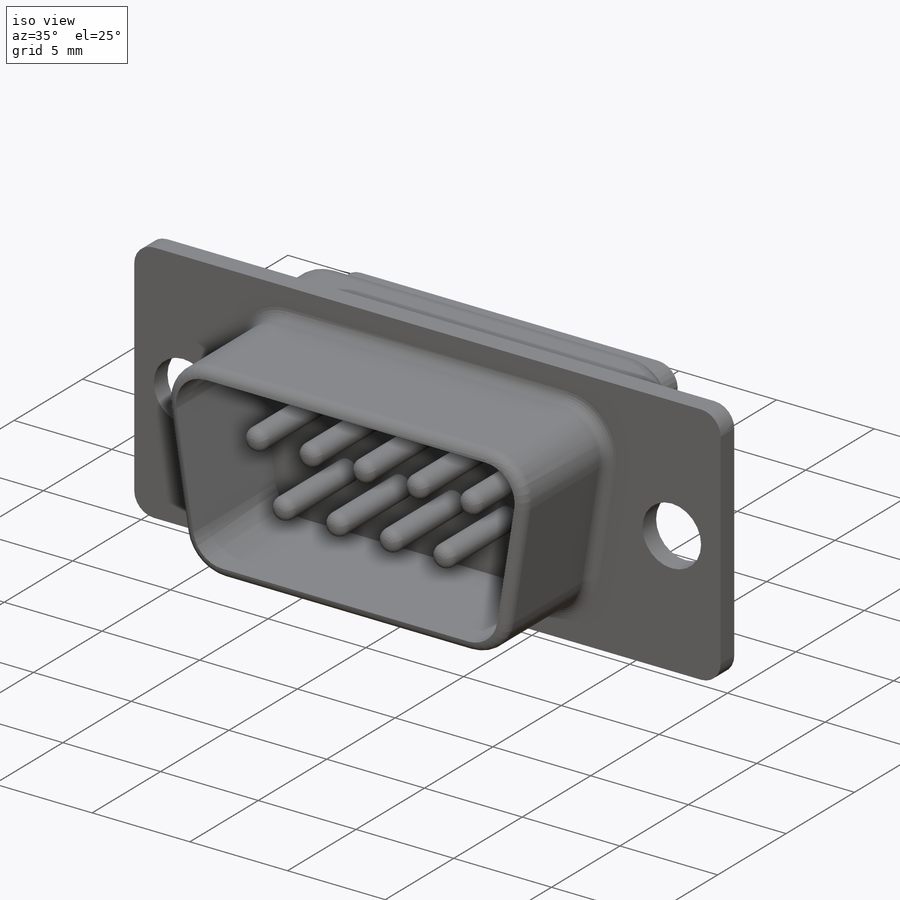
[diagram: iso view]
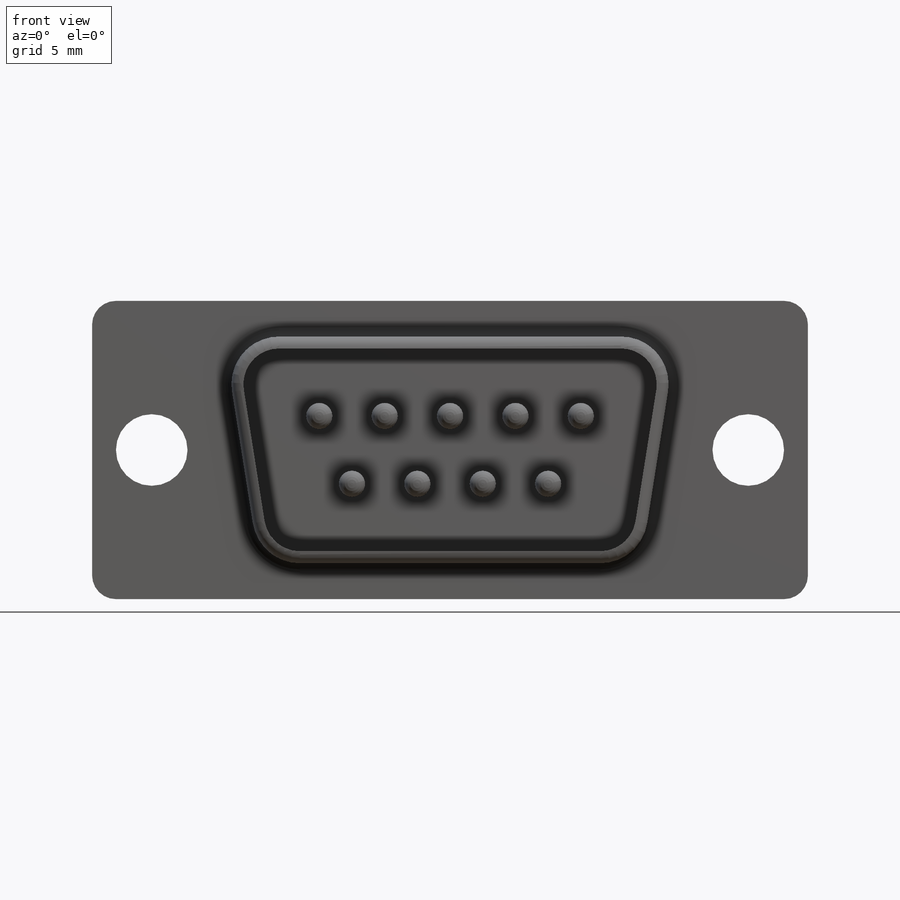
[diagram: front view]
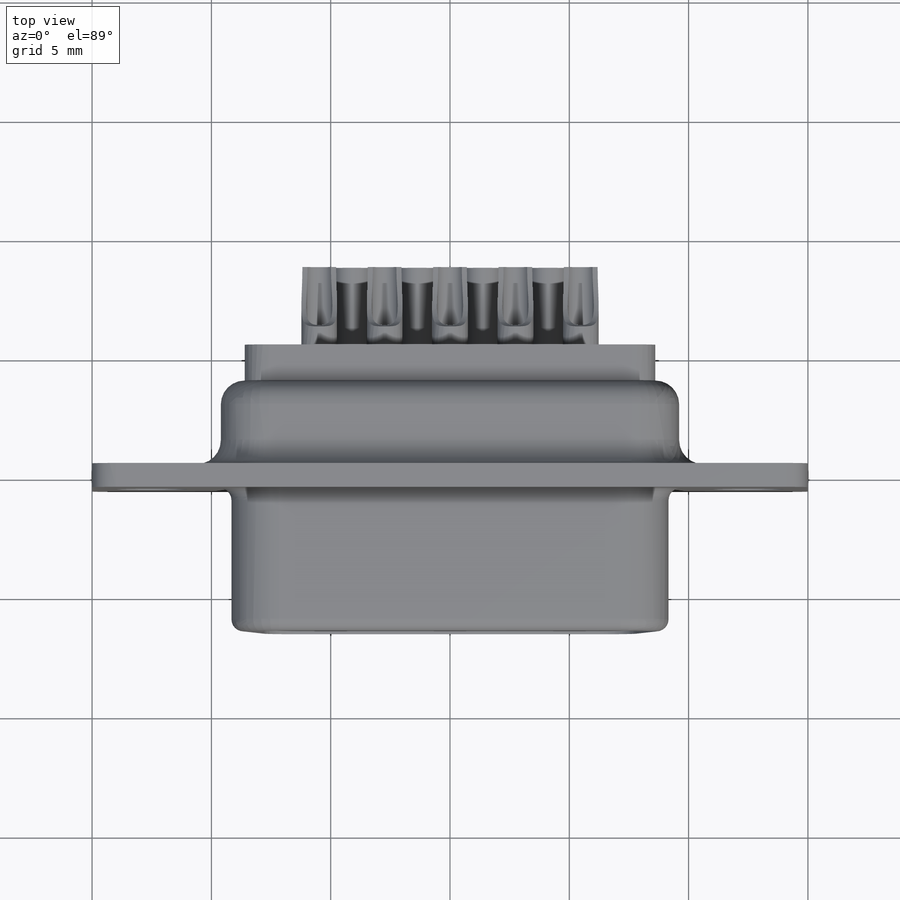
[diagram: top view]
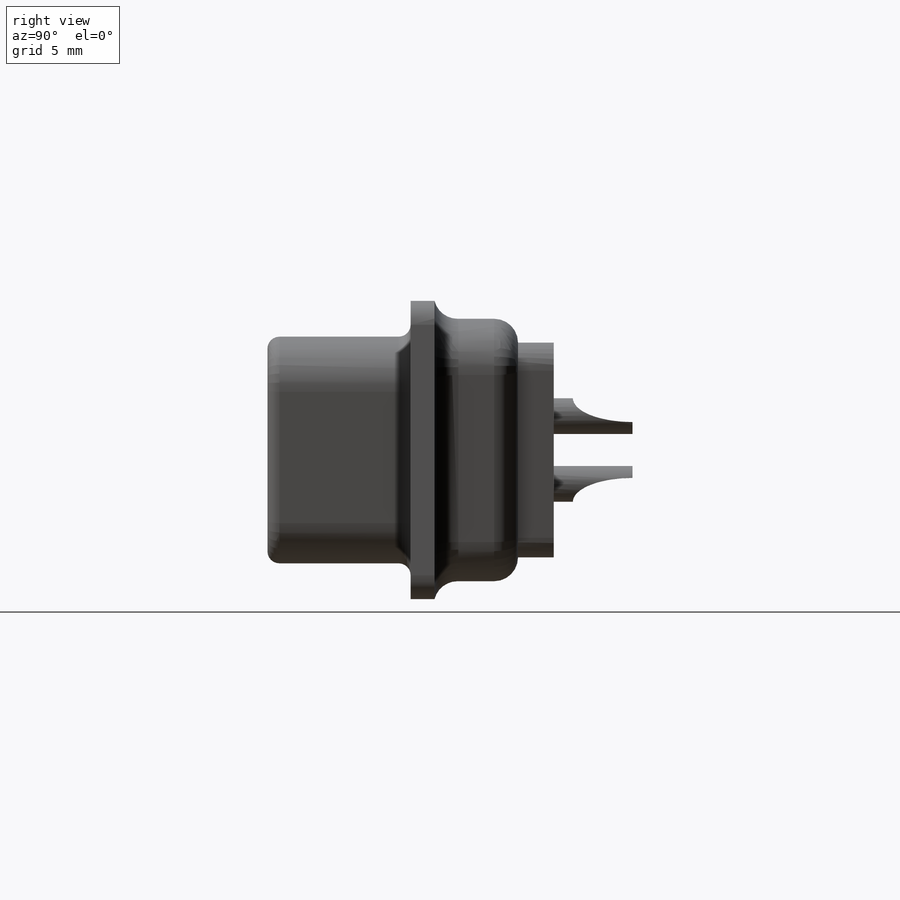
[diagram: right view]
SOLIDWORKS PART (.sldprt)
format: sldprt  version: not decoded by parser v0  size: 669,184 bytes
history: native  units: mm
features: sketch x10, extrude x7, plane x3, cut_extrude x3, fillet x3, pattern_linear x2, material x1 (+9 scaffold rows collapsed)
feature tree (38):
  scaffold x9  (default folders/planes/origin — collapsed)
  material  "Материал <не указан>"
  plane  "Спереди"
  plane  "Сверху"
  plane  "Справа"
  sketch  "Эскиз1"  dims[c1.D1=~55.075881mm c1.D2=~97.397347mm c2.D1=30.0mm c2.D2=12.5mm]
  extrude  "Бобышка-Вытянуть1"  Depth=1mm
  sketch  "Эскиз2"  dims[c1.D4=2.0mm c1.D1=~9.576658mm c1.D2=~15.781941mm c2.D1=11.0mm c2.D2=20.0mm c2.D3=16.0mm c3.D1=11.0mm]
  extrude  "Бобышка-Вытянуть2"  Depth=3.5mm
  sketch  "Эскиз3"  dims[D1=0.0mm D2=1.0mm]
  extrude  "Бобышка-Вытянуть3"  Depth=1.5mm
  sketch  "Эскиз4"  dims[c1.D1=1.5mm c1.D2=~0.967389mm c1.D4=0.9mm c2.D2=0.2mm c2.D3=1.42mm c2.D4=5.48mm]
  extrude  "Бобышка-Вытянуть4"  Depth=3.3mm
  sketch  "Эскиз5"  dims[D1=2.5mm D2=1.0mm]
  cut_extrude  "Вырез-Вытянуть1"  [1 undecoded]
  pattern_linear  "Линейный массив1"  Count1=5 Count2=1 Spacing1=2.74mm Spacing2=10mm
  sketch  "Эскиз6"  dims[c1.D1=~1.153149mm c1.D2=1.1mm c2.D1=1.42mm c2.D2=4.11mm]
  extrude  "Бобышка-Вытянуть5"  Depth=3.3mm
  sketch  "Эскиз7"  dims[D1=1.0mm]
  cut_extrude  "Вырез-Вытянуть2"  [1 undecoded]
  pattern_linear  "Линейный массив2"  Count1=4 Count2=1 Spacing1=2.74mm Spacing2=10mm
  sketch  "Эскиз8"  dims[D2=3.0mm D1=25.0mm]
  cut_extrude  "Вырез-Вытянуть3"  [1 undecoded]
  fillet  "Скругление1"  Radius=1mm
  fillet  "Скругление2"  Radius=1mm
  sketch  "Эскиз9"  dims[c1.D4=2.0mm c1.D1=~8.325829mm c1.D2=~13.426865mm c2.D1=19.0mm c2.D2=16.0mm c2.D3=9.5mm c2.D5=0.5mm]
  extrude  "Бобышка-Вытянуть6"  Depth=6mm
  sketch  "Эскиз10"  dims[D1=~2.182313mm]
  extrude  "Бобышка-Вытянуть7"  Depth=5mm
  fillet  "Скругление3"  Radius=0.5mm
decode coverage: 22 of 25 modeling features carry decoded parameters
note: ~ marks probable driven/reference dimensions
note: 3 parameter values undecoded
summary: no parameter record found for 3 features
note: suppression state not decoded; provenance and decode notes live in map.json
